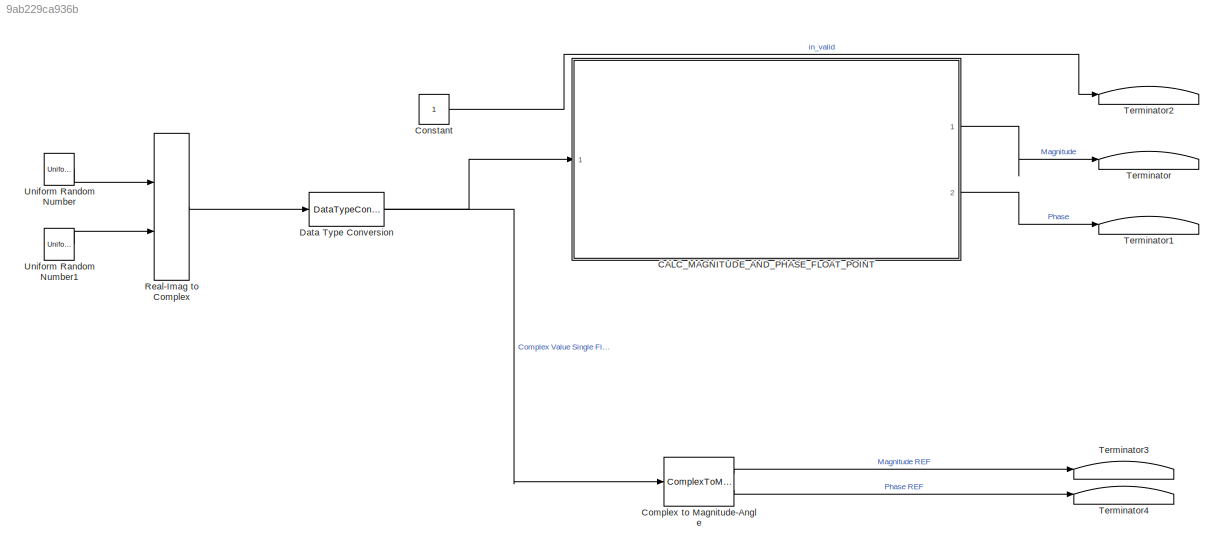
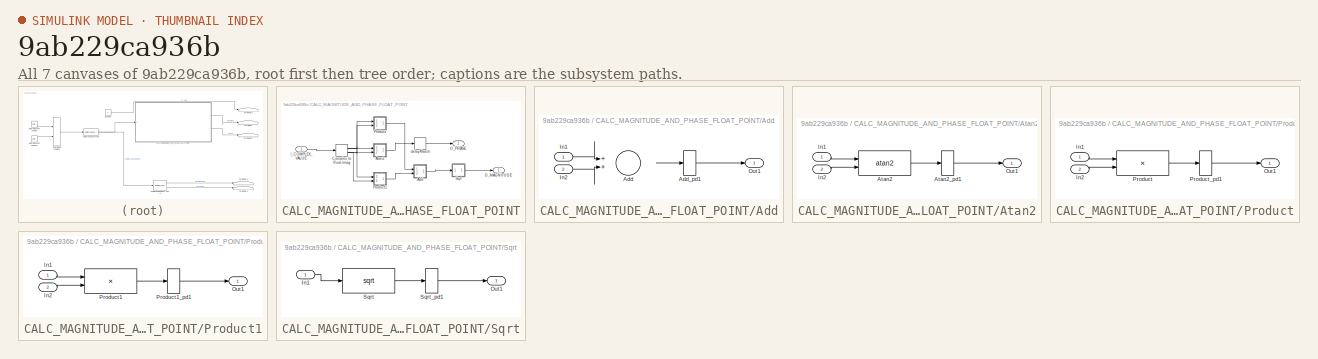
[diagram: thumbnail index - all 7 canvases of the model, root first then tree order]
MODEL slx_9ab229ca936b
KIND model
CONFIG AbsTol = auto
CONFIG EnableMultiTasking = off
CONFIG FixedStep = auto
CONFIG MaxStep = auto
CONFIG MinStep = auto
CONFIG RelTol = 1e-3
CONFIG SampleTimeConstraint = Unconstrained
CONFIG SolverName = VariableStepAuto
CONFIG StartTime = 0.0
CONFIG StopTime = 10.0
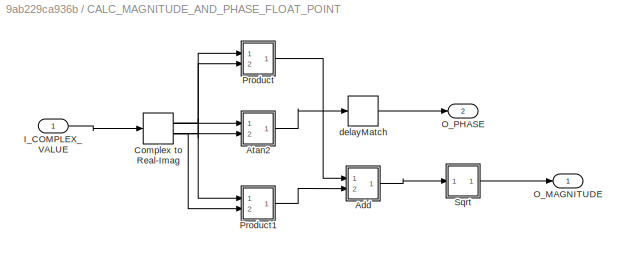
BLOCK [SubSystem] CALC_MAGNITUDE_AND_PHASE_FLOAT_POINT
  Ports = [1, 2]
  RequestExecContextInheritance = off
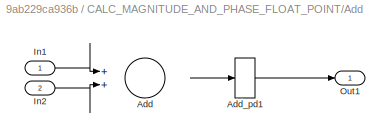
BLOCK [SubSystem] CALC_MAGNITUDE_AND_PHASE_FLOAT_POINT/Add
  Ports = [2, 1]
  RequestExecContextInheritance = off
BLOCK [Sum] CALC_MAGNITUDE_AND_PHASE_FLOAT_POINT/Add/Add
  OutDataTypeStr = single
  Ports = [2, 1]
  SampleTime = 1
BLOCK [Delay] CALC_MAGNITUDE_AND_PHASE_FLOAT_POINT/Add/Add_pd1
  DelayLength = 11
  InputPortMap = u0
  Ports = [1, 1]
BLOCK [Inport] CALC_MAGNITUDE_AND_PHASE_FLOAT_POINT/Add/In1
BLOCK [Inport] CALC_MAGNITUDE_AND_PHASE_FLOAT_POINT/Add/In2
  Port = 2
BLOCK [Outport] CALC_MAGNITUDE_AND_PHASE_FLOAT_POINT/Add/Out1
BLOCK [SubSystem] CALC_MAGNITUDE_AND_PHASE_FLOAT_POINT/Atan2
  Ports = [2, 1]
  RequestExecContextInheritance = off
BLOCK [Trigonometry] CALC_MAGNITUDE_AND_PHASE_FLOAT_POINT/Atan2/Atan2
  Operator = atan2
  Ports = [2, 1]
  SampleTime = 1
BLOCK [Delay] CALC_MAGNITUDE_AND_PHASE_FLOAT_POINT/Atan2/Atan2_pd1
  DelayLength = 42
  InputPortMap = u0
  Ports = [1, 1]
BLOCK [Inport] CALC_MAGNITUDE_AND_PHASE_FLOAT_POINT/Atan2/In1
BLOCK [Inport] CALC_MAGNITUDE_AND_PHASE_FLOAT_POINT/Atan2/In2
  Port = 2
BLOCK [Outport] CALC_MAGNITUDE_AND_PHASE_FLOAT_POINT/Atan2/Out1
BLOCK [ComplexToRealImag] CALC_MAGNITUDE_AND_PHASE_FLOAT_POINT/Complex to Real-Imag
  Ports = [1, 2]
  SampleTime = 1
BLOCK [Inport] CALC_MAGNITUDE_AND_PHASE_FLOAT_POINT/I_COMPLEX_VALUE
  OutDataTypeStr = single
  PortDimensions = 1
  SampleTime = 1
  SignalType = complex
BLOCK [Outport] CALC_MAGNITUDE_AND_PHASE_FLOAT_POINT/O_MAGNITUDE
  SampleTime = 1
BLOCK [Outport] CALC_MAGNITUDE_AND_PHASE_FLOAT_POINT/O_PHASE
  Port = 2
  SampleTime = 1
BLOCK [SubSystem] CALC_MAGNITUDE_AND_PHASE_FLOAT_POINT/Product
  Ports = [2, 1]
  RequestExecContextInheritance = off
BLOCK [Inport] CALC_MAGNITUDE_AND_PHASE_FLOAT_POINT/Product/In1
BLOCK [Inport] CALC_MAGNITUDE_AND_PHASE_FLOAT_POINT/Product/In2
  Port = 2
BLOCK [Outport] CALC_MAGNITUDE_AND_PHASE_FLOAT_POINT/Product/Out1
BLOCK [Product] CALC_MAGNITUDE_AND_PHASE_FLOAT_POINT/Product/Product
  Inputs = **
  OutDataTypeStr = single
  Ports = [2, 1]
  SampleTime = 1
BLOCK [Delay] CALC_MAGNITUDE_AND_PHASE_FLOAT_POINT/Product/Product_pd1
  DelayLength = 8
  InputPortMap = u0
  Ports = [1, 1]
BLOCK [SubSystem] CALC_MAGNITUDE_AND_PHASE_FLOAT_POINT/Product1
  Ports = [2, 1]
  RequestExecContextInheritance = off
BLOCK [Inport] CALC_MAGNITUDE_AND_PHASE_FLOAT_POINT/Product1/In1
BLOCK [Inport] CALC_MAGNITUDE_AND_PHASE_FLOAT_POINT/Product1/In2
  Port = 2
BLOCK [Outport] CALC_MAGNITUDE_AND_PHASE_FLOAT_POINT/Product1/Out1
BLOCK [Product] CALC_MAGNITUDE_AND_PHASE_FLOAT_POINT/Product1/Product1
  Inputs = **
  OutDataTypeStr = single
  Ports = [2, 1]
  SampleTime = 1
BLOCK [Delay] CALC_MAGNITUDE_AND_PHASE_FLOAT_POINT/Product1/Product1_pd1
  DelayLength = 8
  InputPortMap = u0
  Ports = [1, 1]
BLOCK [SubSystem] CALC_MAGNITUDE_AND_PHASE_FLOAT_POINT/Sqrt
  Ports = [1, 1]
  RequestExecContextInheritance = off
BLOCK [Inport] CALC_MAGNITUDE_AND_PHASE_FLOAT_POINT/Sqrt/In1
BLOCK [Outport] CALC_MAGNITUDE_AND_PHASE_FLOAT_POINT/Sqrt/Out1
BLOCK [Sqrt] CALC_MAGNITUDE_AND_PHASE_FLOAT_POINT/Sqrt/Sqrt
  SampleTime = 1
BLOCK [Delay] CALC_MAGNITUDE_AND_PHASE_FLOAT_POINT/Sqrt/Sqrt_pd1
  DelayLength = 28
  InputPortMap = u0
  Ports = [1, 1]
BLOCK [Delay] CALC_MAGNITUDE_AND_PHASE_FLOAT_POINT/delayMatch
  DelayLength = double(5)
  InitialCondition = 0
  InputPortMap = u0
  Ports = [1, 1]
  SampleTime = 1
BLOCK [ComplexToMagnitudeAngle] Complex to Magnitude-Angle
  Ports = [1, 2]
BLOCK [Constant] Constant
  OutDataTypeStr = boolean
BLOCK [DataTypeConversion] Data Type Conversion
  OutDataTypeStr = single
  RndMeth = Round
  SaturateOnIntegerOverflow = off
BLOCK [RealImagToComplex] Real-Imag to Complex
  Ports = [2, 1]
BLOCK [Terminator] Terminator
BLOCK [Terminator] Terminator1
BLOCK [Terminator] Terminator2
BLOCK [Terminator] Terminator3
BLOCK [Terminator] Terminator4
BLOCK [UniformRandomNumber] Uniform Random Number
  Maximum = 2^(20)-1
  Minimum = 0
  SampleTime = 1
  Seed = 20
BLOCK [UniformRandomNumber] Uniform Random Number1
  Maximum = 2^(20)-1
  Minimum = 0
  SampleTime = 1
  Seed = 21
LINE CALC_MAGNITUDE_AND_PHASE_FLOAT_POINT/Add/Add:1 -> CALC_MAGNITUDE_AND_PHASE_FLOAT_POINT/Add/Add_pd1:1
LINE CALC_MAGNITUDE_AND_PHASE_FLOAT_POINT/Add/Add_pd1:1 -> CALC_MAGNITUDE_AND_PHASE_FLOAT_POINT/Add/Out1:1
LINE CALC_MAGNITUDE_AND_PHASE_FLOAT_POINT/Add/In1:1 -> CALC_MAGNITUDE_AND_PHASE_FLOAT_POINT/Add/Add:1
LINE CALC_MAGNITUDE_AND_PHASE_FLOAT_POINT/Add/In2:1 -> CALC_MAGNITUDE_AND_PHASE_FLOAT_POINT/Add/Add:2
LINE CALC_MAGNITUDE_AND_PHASE_FLOAT_POINT/Add:1 -> CALC_MAGNITUDE_AND_PHASE_FLOAT_POINT/Sqrt:1
LINE CALC_MAGNITUDE_AND_PHASE_FLOAT_POINT/Atan2/Atan2:1 -> CALC_MAGNITUDE_AND_PHASE_FLOAT_POINT/Atan2/Atan2_pd1:1
LINE CALC_MAGNITUDE_AND_PHASE_FLOAT_POINT/Atan2/Atan2_pd1:1 -> CALC_MAGNITUDE_AND_PHASE_FLOAT_POINT/Atan2/Out1:1
LINE CALC_MAGNITUDE_AND_PHASE_FLOAT_POINT/Atan2/In1:1 -> CALC_MAGNITUDE_AND_PHASE_FLOAT_POINT/Atan2/Atan2:1
LINE CALC_MAGNITUDE_AND_PHASE_FLOAT_POINT/Atan2/In2:1 -> CALC_MAGNITUDE_AND_PHASE_FLOAT_POINT/Atan2/Atan2:2
LINE CALC_MAGNITUDE_AND_PHASE_FLOAT_POINT/Atan2:1 -> CALC_MAGNITUDE_AND_PHASE_FLOAT_POINT/delayMatch:1
NET CALC_MAGNITUDE_AND_PHASE_FLOAT_POINT/Complex to Real-Imag:1 -> CALC_MAGNITUDE_AND_PHASE_FLOAT_POINT/Atan2:2, CALC_MAGNITUDE_AND_PHASE_FLOAT_POINT/Product:1, CALC_MAGNITUDE_AND_PHASE_FLOAT_POINT/Product:2
NET CALC_MAGNITUDE_AND_PHASE_FLOAT_POINT/Complex to Real-Imag:2 -> CALC_MAGNITUDE_AND_PHASE_FLOAT_POINT/Atan2:1, CALC_MAGNITUDE_AND_PHASE_FLOAT_POINT/Product1:1, CALC_MAGNITUDE_AND_PHASE_FLOAT_POINT/Product1:2
LINE CALC_MAGNITUDE_AND_PHASE_FLOAT_POINT/I_COMPLEX_VALUE:1 -> CALC_MAGNITUDE_AND_PHASE_FLOAT_POINT/Complex to Real-Imag:1
LINE CALC_MAGNITUDE_AND_PHASE_FLOAT_POINT/Product/In1:1 -> CALC_MAGNITUDE_AND_PHASE_FLOAT_POINT/Product/Product:1
LINE CALC_MAGNITUDE_AND_PHASE_FLOAT_POINT/Product/In2:1 -> CALC_MAGNITUDE_AND_PHASE_FLOAT_POINT/Product/Product:2
LINE CALC_MAGNITUDE_AND_PHASE_FLOAT_POINT/Product/Product:1 -> CALC_MAGNITUDE_AND_PHASE_FLOAT_POINT/Product/Product_pd1:1
LINE CALC_MAGNITUDE_AND_PHASE_FLOAT_POINT/Product/Product_pd1:1 -> CALC_MAGNITUDE_AND_PHASE_FLOAT_POINT/Product/Out1:1
LINE CALC_MAGNITUDE_AND_PHASE_FLOAT_POINT/Product1/In1:1 -> CALC_MAGNITUDE_AND_PHASE_FLOAT_POINT/Product1/Product1:1
LINE CALC_MAGNITUDE_AND_PHASE_FLOAT_POINT/Product1/In2:1 -> CALC_MAGNITUDE_AND_PHASE_FLOAT_POINT/Product1/Product1:2
LINE CALC_MAGNITUDE_AND_PHASE_FLOAT_POINT/Product1/Product1:1 -> CALC_MAGNITUDE_AND_PHASE_FLOAT_POINT/Product1/Product1_pd1:1
LINE CALC_MAGNITUDE_AND_PHASE_FLOAT_POINT/Product1/Product1_pd1:1 -> CALC_MAGNITUDE_AND_PHASE_FLOAT_POINT/Product1/Out1:1
LINE CALC_MAGNITUDE_AND_PHASE_FLOAT_POINT/Product1:1 -> CALC_MAGNITUDE_AND_PHASE_FLOAT_POINT/Add:2
LINE CALC_MAGNITUDE_AND_PHASE_FLOAT_POINT/Product:1 -> CALC_MAGNITUDE_AND_PHASE_FLOAT_POINT/Add:1
LINE CALC_MAGNITUDE_AND_PHASE_FLOAT_POINT/Sqrt/In1:1 -> CALC_MAGNITUDE_AND_PHASE_FLOAT_POINT/Sqrt/Sqrt:1
LINE CALC_MAGNITUDE_AND_PHASE_FLOAT_POINT/Sqrt/Sqrt:1 -> CALC_MAGNITUDE_AND_PHASE_FLOAT_POINT/Sqrt/Sqrt_pd1:1
LINE CALC_MAGNITUDE_AND_PHASE_FLOAT_POINT/Sqrt/Sqrt_pd1:1 -> CALC_MAGNITUDE_AND_PHASE_FLOAT_POINT/Sqrt/Out1:1
LINE CALC_MAGNITUDE_AND_PHASE_FLOAT_POINT/Sqrt:1 -> CALC_MAGNITUDE_AND_PHASE_FLOAT_POINT/O_MAGNITUDE:1
LINE CALC_MAGNITUDE_AND_PHASE_FLOAT_POINT/delayMatch:1 -> CALC_MAGNITUDE_AND_PHASE_FLOAT_POINT/O_PHASE:1
LINE CALC_MAGNITUDE_AND_PHASE_FLOAT_POINT:1 -> Terminator:1
LINE CALC_MAGNITUDE_AND_PHASE_FLOAT_POINT:2 -> Terminator1:1
LINE Complex to Magnitude-Angle:1 -> Terminator3:1
LINE Complex to Magnitude-Angle:2 -> Terminator4:1
LINE Constant:1 -> Terminator2:1
NET Data Type Conversion:1 -> CALC_MAGNITUDE_AND_PHASE_FLOAT_POINT:1, Complex to Magnitude-Angle:1
LINE Real-Imag to Complex:1 -> Data Type Conversion:1
LINE Uniform Random Number1:1 -> Real-Imag to Complex:2
LINE Uniform Random Number:1 -> Real-Imag to Complex:1
note: NET lines group one-source signal fan-out (src -> all destinations, sorted); 1:1 wires keep LINE
